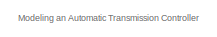
[diagram: root canvas - part 1/7, top center region]
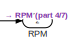
[diagram: root canvas - part 2/7, top right region]
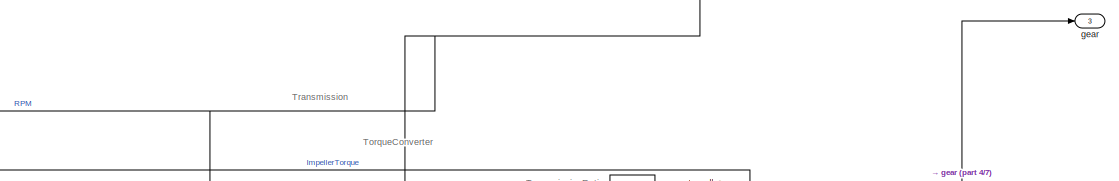
[diagram: root canvas - part 3/7, full width, top band]
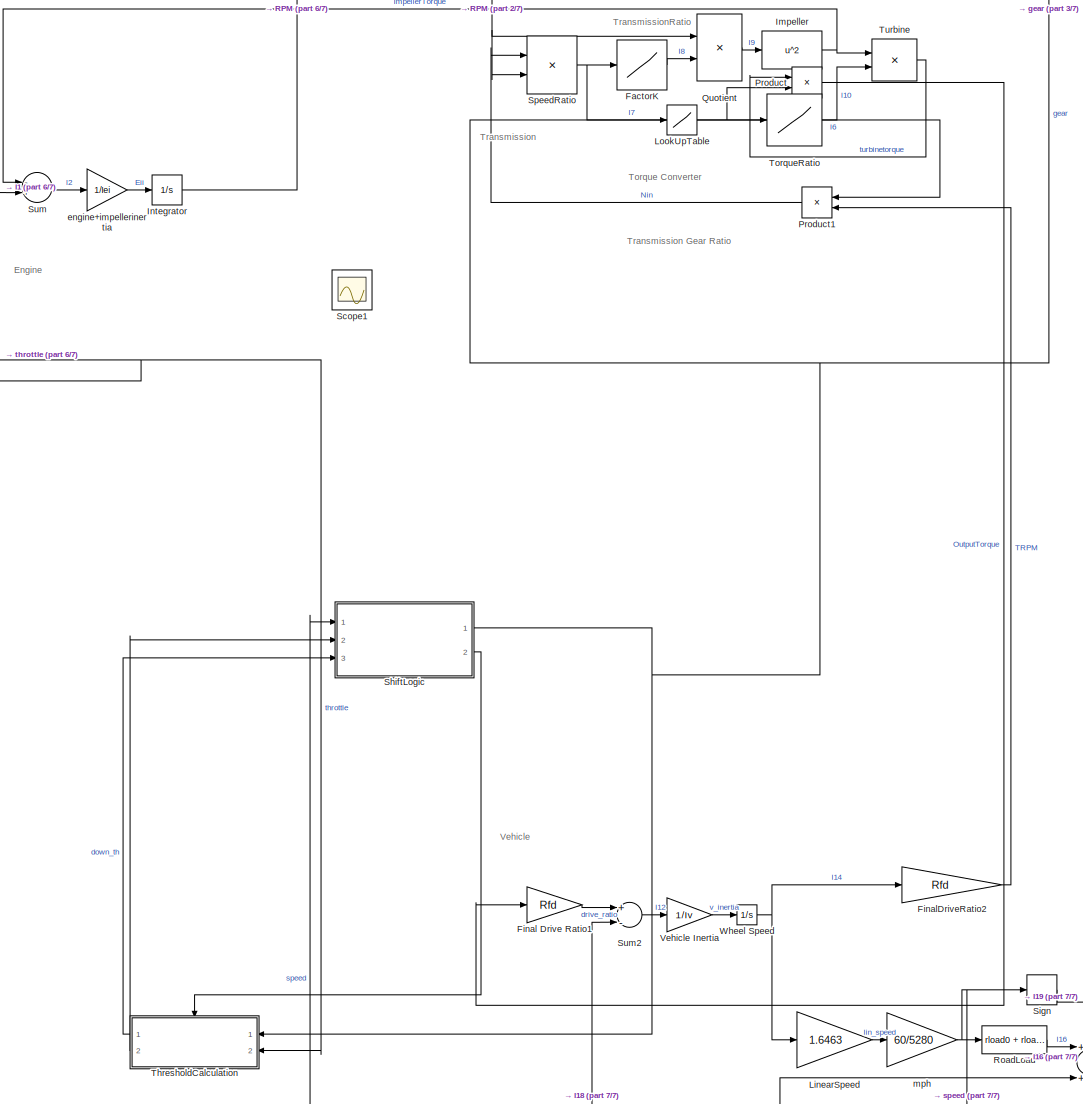
[diagram: root canvas - part 4/7, full width, middle band]
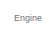
[diagram: root canvas - part 5/7, top left region]
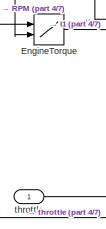
[diagram: root canvas - part 6/7, middle left region]
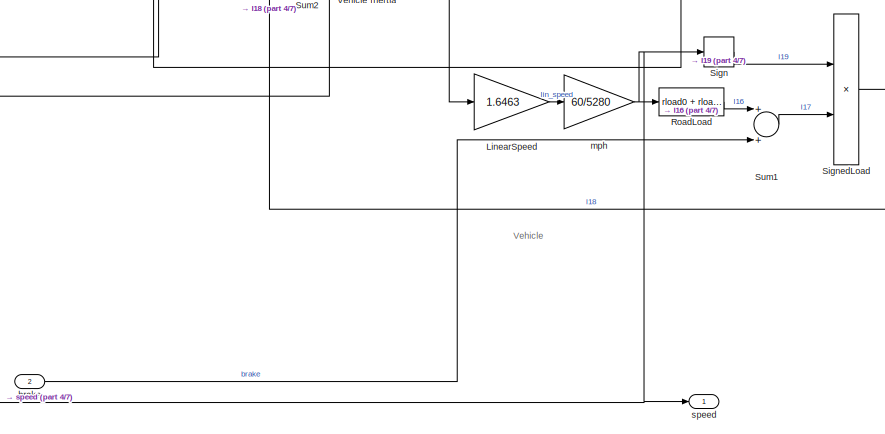
[diagram: root canvas - part 7/7, bottom center region]
MODEL slx_3d15494580a1
KIND model
CONFIG AbsTol = 1e-6
CONFIG EnableMultiTasking = off
CONFIG FixedStep = .01
CONFIG MaxStep = auto
CONFIG MinStep = auto
CONFIG RelTol = 1e-3
CONFIG SampleTimeConstraint = Unconstrained
CONFIG Solver = ode5
CONFIG SolverName = ode5
CONFIG StartTime = 0.0
CONFIG StopTime = 30
WORKSPACE source: MATLAB code (in-file)
WORKSPACE code: load sldemo_autotrans_data; %load initial conditions and other necessary data
BLOCK [Lookup2D] EngineTorque
  ColumnIndex = nevec
  RowIndex = thvec
  SaturateOnIntegerOverflow = off
  Table = emap
BLOCK [Lookup] FactorK
  InputValues = speedratio
  Table = Kfactor
BLOCK [Gain] Final Drive Ratio1
  Gain = Rfd
BLOCK [Gain] FinalDriveRatio2
  Gain = Rfd
BLOCK [Fcn] Impeller
  Expr = u^2
BLOCK [Integrator] Integrator
  InitialCondition = 1000
  LimitOutput = on
  LowerSaturationLimit = 600
  Ports = [1, 1]
  UpperSaturationLimit = 6000
  ZeroCross = off
BLOCK [Gain] LinearSpeed
  Gain = 1.6463
BLOCK [Lookup] LookUpTable
  InputValues = [1 2 3 4]
  LockScale = on
  OutDataTypeStr = double
  Table = [2.393 1.450 1.000 0.677]
BLOCK [Product] Product
  Ports = [2, 1]
  RndMeth = Floor
BLOCK [Product] Product1
  Ports = [2, 1]
  RndMeth = Floor
BLOCK [Product] Quotient
  Inputs = */
  Ports = [2, 1]
  RndMeth = Floor
BLOCK [Outport] RPM
  IconDisplay = Port number
  Port = 2
BLOCK [Fcn] RoadLoad
  Expr = rload0 + rload2*u^2
BLOCK [Scope] Scope1
  IOType = viewer
  NumInputPorts = 1
  Ports = []
  ScopeSpecificationString = Simulink.scopes.TimeScopeBlockCfg('CurrentConfiguration', extmgr.ConfigurationSet(extmgr.Configuration('Core','General UI',true),extmgr.Configuration('Core','Source UI',true),extmgr.Configuration('Sources','WiredSimulink',true,'DataLoggingMaxPoints','7500','DataLoggingLimitDataPoints',true,'DataLoggingSaveFormat','Array','DataLoggingDecimation','1','DataLoggingDecimateData',true),extmgr.Configurat...<+1681ch>
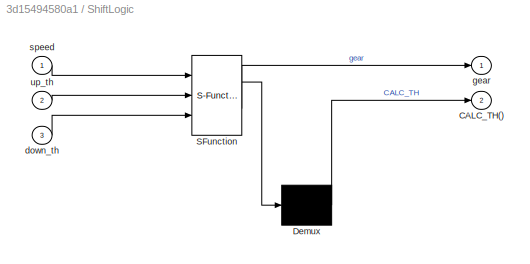
BLOCK [SubSystem] ShiftLogic
  ErrorFcn = Stateflow.Translate.translate
  PermitHierarchicalResolution = ExplicitOnly
  Ports = [3, 2]
  RequestExecContextInheritance = off
  SFBlockType = Chart
  TreatAsAtomicUnit = on
  Variant = off
BLOCK [Demux] ShiftLogic/ Demux 
  Outputs = 1
  Ports = [1, 1]
BLOCK [S-Function] ShiftLogic/ SFunction 
  EnableBusSupport = on
  FunctionName = sf_sfun
  Parameters = TWAIT
  PortCounts = [3 2]
  Ports = [3, 2]
  SFcnIsStateOwnerBlock = off
  SFunctionDeploymentMode = off
  Tag = Stateflow S-Function Autotrans_shift_expanded 1
BLOCK [Outport] ShiftLogic/CALC_TH()
  IconDisplay = Port number
  Port = 2
BLOCK [Inport] ShiftLogic/down_th
  IconDisplay = Port number
  Port = 3
BLOCK [Outport] ShiftLogic/gear
  IconDisplay = Port number
BLOCK [Inport] ShiftLogic/speed
  IconDisplay = Port number
BLOCK [Inport] ShiftLogic/up_th
  IconDisplay = Port number
  Port = 2
BLOCK [Signum] Sign
BLOCK [Product] SignedLoad
  Ports = [2, 1]
  RndMeth = Floor
BLOCK [Product] SpeedRatio
  Inputs = */
  Ports = [2, 1]
  RndMeth = Floor
BLOCK [Sum] Sum
  Inputs = -+
  Ports = [2, 1]
BLOCK [Sum] Sum1
  Ports = [2, 1]
BLOCK [Sum] Sum2
  Inputs = +-
  Ports = [2, 1]
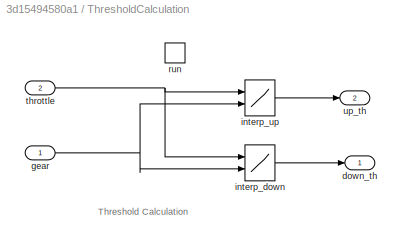
BLOCK [SubSystem] ThresholdCalculation
  Ports = [2, 2, 0, 1]
  RequestExecContextInheritance = off
  TreatAsAtomicUnit = on
  Variant = off
BLOCK [Outport] ThresholdCalculation/down_th
  IconDisplay = Port number
BLOCK [Inport] ThresholdCalculation/gear
  IconDisplay = Port number
BLOCK [Lookup2D] ThresholdCalculation/interp_down
  ColumnIndex = [1:4]
  InputSameDT = off
  LockScale = on
  OutDataTypeStr = double
  RowIndex = downth
  SaturateOnIntegerOverflow = off
  Table = downtab
BLOCK [Lookup2D] ThresholdCalculation/interp_up
  ColumnIndex = [1:4]
  InputSameDT = off
  LockScale = on
  OutDataTypeStr = double
  RowIndex = upth
  SaturateOnIntegerOverflow = off
  Table = uptab
BLOCK [TriggerPort] ThresholdCalculation/run
  Ports = []
  TriggerType = function-call
  VariantControl = Variant
  ZeroCross = off
BLOCK [Inport] ThresholdCalculation/throttle
  IconDisplay = Port number
  Port = 2
BLOCK [Outport] ThresholdCalculation/up_th
  IconDisplay = Port number
  Port = 2
BLOCK [Lookup] TorqueRatio
  InputValues = speedratio
  Table = Torkratio
BLOCK [Product] Turbine
  Ports = [2, 1]
  RndMeth = Floor
BLOCK [Gain] Vehicle Inertia
  Gain = 1/Iv
BLOCK [Integrator] Wheel Speed
  InitialCondition = N20/Rfd
  Ports = [1, 1]
  ZeroCross = off
BLOCK [Inport] brake
  IconDisplay = Port number
  Interpolate = off
  Port = 2
BLOCK [Gain] engine+impellerinertia
  Gain = 1/Iei
BLOCK [Outport] gear
  IconDisplay = Port number
  Port = 3
BLOCK [Gain] mph
  Gain = 60/5280
BLOCK [Outport] speed
  IconDisplay = Port number
BLOCK [Inport] throttle
  IconDisplay = Port number
  Interpolate = off
ANNOTATION (root): Engine
ANNOTATION (root): Modeling an Automatic Transmission Controller
ANNOTATION (root): Torque Converter
ANNOTATION (root): TorqueConverter
ANNOTATION (root): Transmission
ANNOTATION (root): Transmission Gear Ratio
ANNOTATION (root): TransmissionRatio
ANNOTATION (root): Vehicle
ANNOTATION ThresholdCalculation: Threshold Calculation
LINE EngineTorque:1 -> Sum:2
LINE FactorK:1 -> Quotient:2
LINE Final Drive Ratio1:1 -> Sum2:1
LINE FinalDriveRatio2:1 -> Product1:2
NET Impeller:1 -> Sum:1, Turbine:1
NET Integrator:1 -> EngineTorque:2, Quotient:1, RPM:1, SpeedRatio:2
LINE LinearSpeed:1 -> mph:1
NET LookUpTable:1 -> Product1:1, Product:2
LINE Product1:1 -> SpeedRatio:1
LINE Product:1 -> Final Drive Ratio1:1
LINE Quotient:1 -> Impeller:1
LINE RoadLoad:1 -> Sum1:1
NET ShiftLogic:1 -> LookUpTable:1, ThresholdCalculation:1, gear:1
LINE ShiftLogic:2 -> ThresholdCalculation:trigger
LINE Sign:1 -> SignedLoad:1
LINE SignedLoad:1 -> Sum2:2
NET SpeedRatio:1 -> FactorK:1, TorqueRatio:1
LINE Sum1:1 -> SignedLoad:2
LINE Sum2:1 -> Vehicle Inertia:1
LINE Sum:1 -> engine+impellerinertia:1
NET ThresholdCalculation/gear:1 -> ThresholdCalculation/interp_down:2, ThresholdCalculation/interp_up:2
LINE ThresholdCalculation/interp_down:1 -> ThresholdCalculation/down_th:1
LINE ThresholdCalculation/interp_up:1 -> ThresholdCalculation/up_th:1
NET ThresholdCalculation/throttle:1 -> ThresholdCalculation/interp_down:1, ThresholdCalculation/interp_up:1
LINE ThresholdCalculation:1 -> ShiftLogic:3
LINE ThresholdCalculation:2 -> ShiftLogic:2
LINE TorqueRatio:1 -> Turbine:2
LINE Turbine:1 -> Product:1
LINE Vehicle Inertia:1 -> Wheel Speed:1
NET Wheel Speed:1 -> FinalDriveRatio2:1, LinearSpeed:1
LINE brake:1 -> Sum1:2
LINE engine+impellerinertia:1 -> Integrator:1
NET mph:1 -> RoadLoad:1, ShiftLogic:1, Sign:1, speed:1
NET throttle:1 -> EngineTorque:1, ThresholdCalculation:2
note: NET lines group one-source signal fan-out (src -> all destinations, sorted); 1:1 wires keep LINE
CHART ShiftLogic states=9 transitions=14
  STATE_LABEL 'gear_state'
  STATE_LABEL 'fourth\nentry:\ngear = 4;'
  STATE_LABEL 'third\nentry:\ngear = 3;'
  STATE_LABEL 'second\nentry:\ngear = 2;'
  STATE_LABEL 'first\nentry:\ngear = 1;'
  STATE_LABEL 'UP'
  STATE_LABEL 'UP'
  STATE_LABEL 'UP'
  STATE_LABEL 'DOWN'
  STATE_LABEL 'DOWN'
  STATE_LABEL 'DOWN'
  STATE_LABEL 'fourth\nentry:\ngear = 4;'
  STATE_LABEL 'third\nentry:\ngear = 3;'
  STATE_LABEL 'second\nentry:\ngear = 2;'
  STATE_LABEL 'first\nentry:\ngear = 1;'
  STATE_LABEL 'selection_state\nduring: CALC_TH;'
  STATE_LABEL 'steady_state'
  STATE_LABEL 'upshifting'
  STATE_LABEL 'downshifting'
  STATE_LABEL '[speed > up_th]'
  STATE_LABEL '[speed < down_th]'
  STATE_LABEL '[speed > down_th]'
  STATE_LABEL 'after(TWAIT,tick)\n[speed <= down_th]\n{gear_state.DOWN}'
  STATE_LABEL 'after(TWAIT,tick)\n[speed >= up_th]\n{gear_state.UP}'
  STATE_LABEL '[speed < up_th]'
  STATE_LABEL 'steady_state'
  STATE_LABEL 'upshifting'
  STATE_LABEL 'downshifting'
